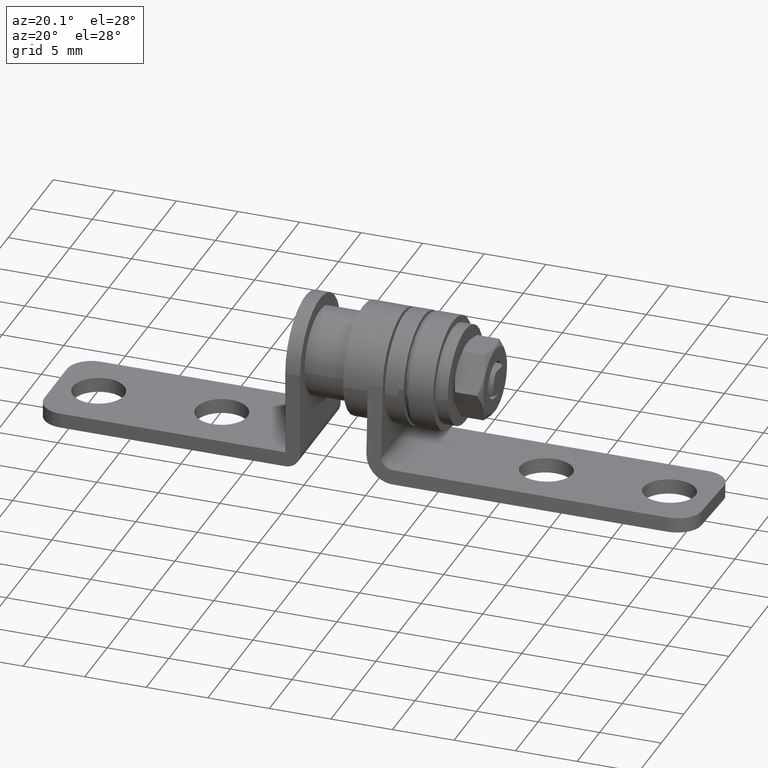
[diagram: clean part render]
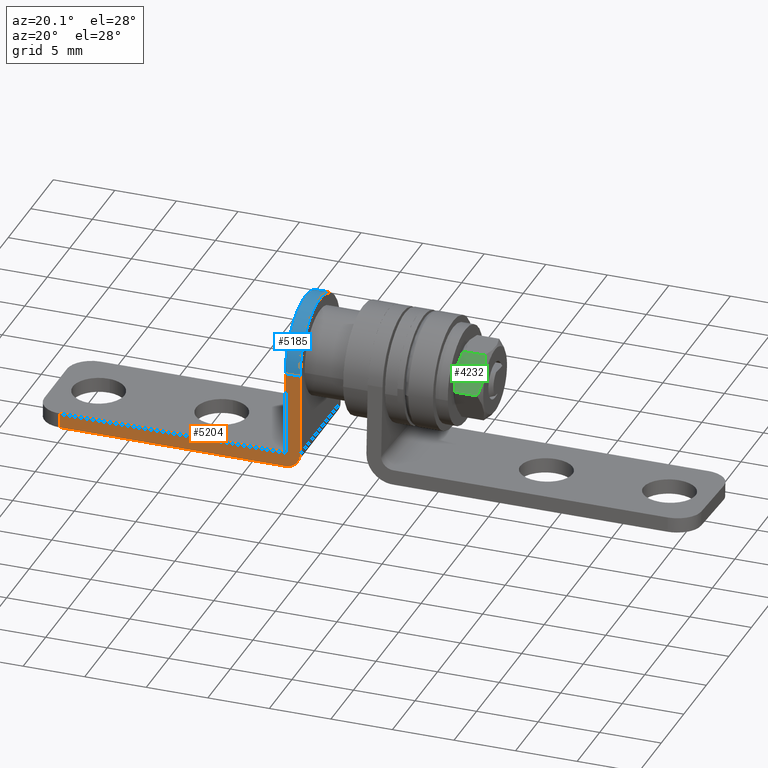
[diagram: same view with three faces highlighted in distinct colors, each labeled with its STEP entity id]
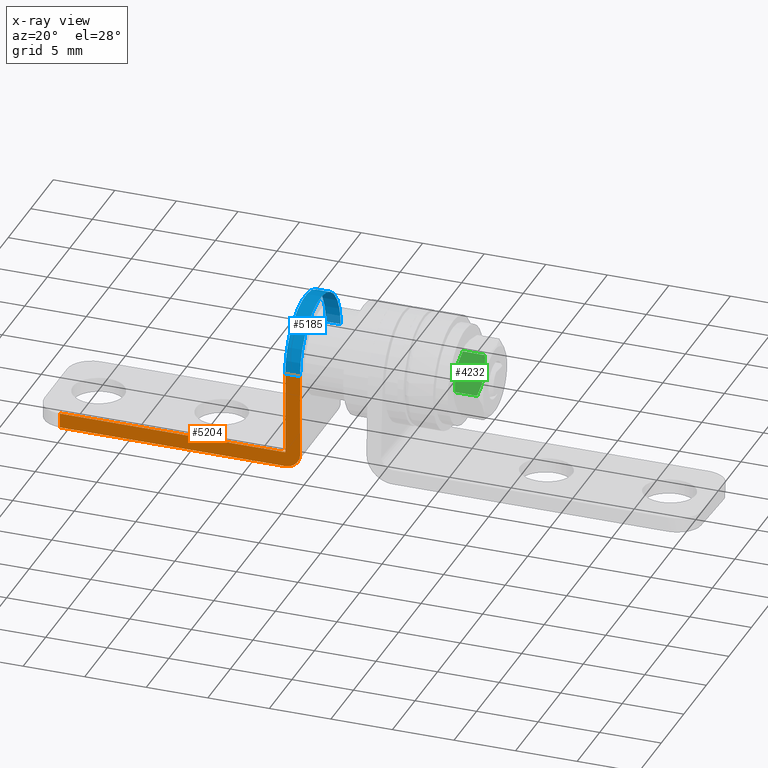
[diagram: x-ray of the same camera — body ghosted, the three highlighted faces saturated]
A machine part, auxiliary view with three faces highlighted in distinct colors.
The next image is the same camera in x-ray (body ghosted, the three faces saturated) — at least one of them is partly hidden behind the body in this view.
Their STEP definitions:

[orange] entity #5204 — the highlighted face is a freeform B-spline surface patch.
#4654=CARTESIAN_POINT('',(-6.699999999999861,-4.500000000000150,-6.799999999999099));
#4655=VERTEX_POINT('',#4654);
#4661=CARTESIAN_POINT('',(-6.699999999999821,-4.500000000000339,7.966345E-013));
#4662=VERTEX_POINT('',#4661);
#4663=CARTESIAN_POINT('',(-6.699999999999861,-4.500000000000150,-6.799999999999099));
#4664=CARTESIAN_POINT('',(-6.699999999999821,-4.500000000000339,7.966345E-013));
#4665=QUASI_UNIFORM_CURVE('',1,(#4663,#4664),.UNSPECIFIED.,.F.,.U.);
#4666=EDGE_CURVE('',#4655,#4662,#4665,.T.);
#4903=CARTESIAN_POINT('',(-5.499999999999840,-4.500000000000150,-6.799999999999099));
#4904=VERTEX_POINT('',#4903);
#4910=CARTESIAN_POINT('',(-6.699999999999821,-4.500000000000110,-7.999999999999100));
#4911=VERTEX_POINT('',#4910);
#4912=CARTESIAN_POINT('',(-6.699999999999821,-4.500000000000110,-7.999999999999100));
#4913=CARTESIAN_POINT('',(-5.499999999999820,-4.500000000000150,-7.999999999999100));
#4914=CARTESIAN_POINT('',(-5.499999999999821,-4.500000000000150,-6.799999999999099));
#4922=(BOUNDED_CURVE()B_SPLINE_CURVE(2,(#4912,#4913,#4914),.UNSPECIFIED.,.F.,.U.)CURVE()GEOMETRIC_REPRESENTATION_ITEM()QUASI_UNIFORM_CURVE()RATIONAL_B_SPLINE_CURVE((1.0,0.707106781186547,1.0))REPRESENTATION_ITEM(''));
#4923=EDGE_CURVE('',#4911,#4904,#4922,.T.);
#5000=CARTESIAN_POINT('',(-25.0,-4.500000000000110,-7.999999999999100));
#5001=VERTEX_POINT('',#5000);
#5015=CARTESIAN_POINT('',(-25.0,-4.500000000000150,-6.799999999999099));
#5016=VERTEX_POINT('',#5015);
#5017=CARTESIAN_POINT('',(-25.0,-4.500000000000150,-6.799999999999099));
#5018=CARTESIAN_POINT('',(-25.0,-4.500000000000110,-7.999999999999100));
#5019=QUASI_UNIFORM_CURVE('',1,(#5017,#5018),.UNSPECIFIED.,.F.,.U.);
#5020=EDGE_CURVE('',#5016,#5001,#5019,.T.);
#5046=CARTESIAN_POINT('',(-25.0,-4.500000000000150,-6.799999999999099));
#5047=CARTESIAN_POINT('',(-6.699999999999861,-4.500000000000150,-6.799999999999099));
#5048=QUASI_UNIFORM_CURVE('',1,(#5046,#5047),.UNSPECIFIED.,.F.,.U.);
#5049=EDGE_CURVE('',#5016,#4655,#5048,.T.);
#5084=CARTESIAN_POINT('',(-25.0,-4.500000000000110,-7.999999999999100));
#5085=CARTESIAN_POINT('',(-6.699999999999821,-4.500000000000110,-7.999999999999100));
#5086=QUASI_UNIFORM_CURVE('',1,(#5084,#5085),.UNSPECIFIED.,.F.,.U.);
#5087=EDGE_CURVE('',#5001,#4911,#5086,.T.);
#5151=CARTESIAN_POINT('',(-5.499999999999840,-4.500000000000339,7.966345E-013));
#5152=VERTEX_POINT('',#5151);
#5153=CARTESIAN_POINT('',(-6.699999999999821,-4.500000000000339,7.966345E-013));
#5154=CARTESIAN_POINT('',(-5.499999999999840,-4.500000000000339,7.966345E-013));
#5155=QUASI_UNIFORM_CURVE('',1,(#5153,#5154),.UNSPECIFIED.,.F.,.U.);
#5156=EDGE_CURVE('',#4662,#5152,#5155,.T.);
#5186=CARTESIAN_POINT('',(-25.974024962205231,-4.500000000000110,-8.399599984493545));
#5187=CARTESIAN_POINT('',(-25.974024962205231,-4.500000000000110,0.399600199071960));
#5188=CARTESIAN_POINT('',(-4.525974514763859,-4.500000000000110,-8.399599984493545));
#5189=CARTESIAN_POINT('',(-4.525974514763859,-4.500000000000110,0.399600199071960));
#5190=B_SPLINE_SURFACE_WITH_KNOTS('',1,1,((#5186,#5188),(#5187,#5189)),.UNSPECIFIED.,.F.,.F.,.U.,(2,2),(2,2),(0.0,8.799200183565505),(0.0,21.448050447441371),.UNSPECIFIED.);
#5191=ORIENTED_EDGE('',*,*,#5087,.T.);
#5192=ORIENTED_EDGE('',*,*,#4923,.T.);
#5193=CARTESIAN_POINT('',(-5.499999999999840,-4.500000000000150,-6.799999999999099));
#5194=CARTESIAN_POINT('',(-5.499999999999840,-4.500000000000339,7.966345E-013));
#5195=QUASI_UNIFORM_CURVE('',1,(#5193,#5194),.UNSPECIFIED.,.F.,.U.);
#5196=EDGE_CURVE('',#4904,#5152,#5195,.T.);
#5197=ORIENTED_EDGE('',*,*,#5196,.T.);
#5198=ORIENTED_EDGE('',*,*,#5156,.F.);
#5199=ORIENTED_EDGE('',*,*,#4666,.F.);
#5200=ORIENTED_EDGE('',*,*,#5049,.F.);
#5201=ORIENTED_EDGE('',*,*,#5020,.T.);
#5202=EDGE_LOOP('',(#5191,#5192,#5197,#5198,#5199,#5200,#5201));
#5203=FACE_OUTER_BOUND('',#5202,.T.);
#5204=ADVANCED_FACE('',(#5203),#5190,.F.);

[blue] entity #5185 — the highlighted face is a freeform B-spline surface patch.
#4661=CARTESIAN_POINT('',(-6.699999999999821,-4.500000000000339,7.966345E-013));
#4662=VERTEX_POINT('',#4661);
#4668=CARTESIAN_POINT('',(-6.699999999999821,4.500000000000110,1.075247E-012));
#4669=VERTEX_POINT('',#4668);
#4670=CARTESIAN_POINT('',(-6.699999999999821,-4.500000000000339,7.966345E-013));
#4671=CARTESIAN_POINT('',(-6.699999999999830,-4.500047832245083,0.312930381929105));
#4672=CARTESIAN_POINT('',(-6.699999999999809,-4.434457262288673,0.938776859110739));
#4673=CARTESIAN_POINT('',(-6.699999999999831,-4.172386014225875,1.748804129865697));
#4674=CARTESIAN_POINT('',(-6.699999999999773,-3.763422303934017,2.513898888851450));
#4675=CARTESIAN_POINT('',(-6.699999999999945,-3.265826402022967,3.135669746802380));
#4676=CARTESIAN_POINT('',(-6.699999999999726,-2.689455276664313,3.626620578947549));
#4677=CARTESIAN_POINT('',(-6.699999999999953,-2.081807802544225,4.011439496232184));
#4678=CARTESIAN_POINT('',(-6.699999999999799,-1.316811237609119,4.339433957577369));
#4679=CARTESIAN_POINT('',(-6.699999999999691,-0.443255645021400,4.507625487068368));
#4680=CARTESIAN_POINT('',(-6.699999999999990,0.313867856305708,4.502905459394598));
#4681=CARTESIAN_POINT('',(-6.699999999999714,0.970969847780242,4.409559325590482));
#4682=CARTESIAN_POINT('',(-6.699999999999927,1.574294997939953,4.234606824575129));
#4683=CARTESIAN_POINT('',(-6.699999999999674,2.159705652300759,3.962084328932521));
#4684=CARTESIAN_POINT('',(-6.700000000000053,2.705047864883740,3.616764875993072));
#4685=CARTESIAN_POINT('',(-6.699999999999762,3.166711561180019,3.218539122114129));
#4686=CARTESIAN_POINT('',(-6.699999999999853,3.627547715170934,2.690868617968110));
#4687=CARTESIAN_POINT('',(-6.699999999999841,4.056996490455380,2.021959989861554));
#4688=CARTESIAN_POINT('',(-6.699999999999569,4.411419079078895,1.086023850390726));
#4689=CARTESIAN_POINT('',(-6.700000000000338,4.500086232940491,0.368160612764081));
#4690=CARTESIAN_POINT('',(-6.699999999999821,4.500000000000110,1.075247E-012));
#4691=B_SPLINE_CURVE_WITH_KNOTS('',3,(#4670,#4671,#4672,#4673,#4674,#4675,#4676,#4677,#4678,#4679,#4680,#4681,#4682,#4683,#4684,#4685,#4686,#4687,#4688,#4689,#4690),.UNSPECIFIED.,.F.,.U.,(4,1,1,1,1,1,1,1,1,1,1,1,1,1,1,1,1,1,4),(0.000000057662223,0.938787494681190,1.877599288929286,2.540291116036402,3.534317656848449,4.252245095246716,4.804431963722935,5.688021064058601,6.737286346414174,7.455198001260669,7.952210544286672,8.725357809875623,9.332823483653414,9.885012280559479,10.658162528249530,11.155172280645830,11.983535624809839,13.032788162184200,14.137255645931440),.UNSPECIFIED.);
#4692=EDGE_CURVE('',#4662,#4669,#4691,.T.);
#5112=CARTESIAN_POINT('',(-5.499999999999840,4.500000000000110,1.075247E-012));
#5113=VERTEX_POINT('',#5112);
#5124=CARTESIAN_POINT('',(-6.699999999999821,4.500000000000110,1.075247E-012));
#5125=CARTESIAN_POINT('',(-5.499999999999840,4.500000000000110,1.075247E-012));
#5126=QUASI_UNIFORM_CURVE('',1,(#5124,#5125),.UNSPECIFIED.,.F.,.U.);
#5127=EDGE_CURVE('',#4669,#5113,#5126,.T.);
#5132=CARTESIAN_POINT('',(-6.729999999999821,-4.499828653788654,-0.039269409741882));
#5133=CARTESIAN_POINT('',(-5.469249999999840,-4.499828653788654,-0.039269409741882));
#5134=CARTESIAN_POINT('',(-6.729999999999822,-4.540493317982066,4.620439568119794));
#5135=CARTESIAN_POINT('',(-5.469249999999840,-4.540493317982066,4.620439568119794));
#5136=CARTESIAN_POINT('',(-6.729999999999821,0.117796267385346,4.498457962391006));
#5137=CARTESIAN_POINT('',(-5.469249999999840,0.117796267385346,4.498457962391006));
#5138=CARTESIAN_POINT('',(-6.729999999999822,4.776085852752757,4.376476356662218));
#5139=CARTESIAN_POINT('',(-5.469249999999840,4.776085852752757,4.376476356662218));
#5140=CARTESIAN_POINT('',(-6.729999999999821,4.491606592898525,-0.274718427905662));
#5141=CARTESIAN_POINT('',(-5.469249999999840,4.491606592898525,-0.274718427905662));
#5149=(BOUNDED_SURFACE()B_SPLINE_SURFACE(1,2,((#5132,#5134,#5136,#5138,#5140),(#5133,#5135,#5137,#5139,#5141)),.UNSPECIFIED.,.F.,.F.,.U.)B_SPLINE_SURFACE_WITH_KNOTS((2,2),(3,2,3),(0.0,1.0),(0.0,7.640546691772880,15.281093383545761),.UNSPECIFIED.)GEOMETRIC_REPRESENTATION_ITEM()RATIONAL_B_SPLINE_SURFACE(((1.0,0.694658370458997,1.0,0.694658370458997,1.0),(1.0,0.694658370458997,1.0,0.694658370458997,1.0)))REPRESENTATION_ITEM('')SURFACE());
#5150=ORIENTED_EDGE('',*,*,#4692,.F.);
#5151=CARTESIAN_POINT('',(-5.499999999999840,-4.500000000000339,7.966345E-013));
#5152=VERTEX_POINT('',#5151);
#5153=CARTESIAN_POINT('',(-6.699999999999821,-4.500000000000339,7.966345E-013));
#5154=CARTESIAN_POINT('',(-5.499999999999840,-4.500000000000339,7.966345E-013));
#5155=QUASI_UNIFORM_CURVE('',1,(#5153,#5154),.UNSPECIFIED.,.F.,.U.);
#5156=EDGE_CURVE('',#4662,#5152,#5155,.T.);
#5157=ORIENTED_EDGE('',*,*,#5156,.T.);
#5158=CARTESIAN_POINT('',(-5.499999999999840,-4.500000000000339,7.966345E-013));
#5159=CARTESIAN_POINT('',(-5.499999999999838,-4.500047828034774,0.312930417315108));
#5160=CARTESIAN_POINT('',(-5.499999999999840,-4.434457202787663,0.938776727072932));
#5161=CARTESIAN_POINT('',(-5.499999999999848,-4.172386168399567,1.748804328482675));
#5162=CARTESIAN_POINT('',(-5.499999999999805,-3.763422179921853,2.513898761992441));
#5163=CARTESIAN_POINT('',(-5.499999999999938,-3.265826440697027,3.135669791581036));
#5164=CARTESIAN_POINT('',(-5.499999999999766,-2.689455307522313,3.626620587450480));
#5165=CARTESIAN_POINT('',(-5.499999999999975,-2.081808940774129,4.011447281931111));
#5166=CARTESIAN_POINT('',(-5.499999999999763,-1.469807950237076,4.273788515551078));
#5167=CARTESIAN_POINT('',(-5.499999999999790,-0.700527235688655,4.466489724649106));
#5168=CARTESIAN_POINT('',(-5.500000000000026,-0.017912630451216,4.521069033043697));
#5169=CARTESIAN_POINT('',(-5.499999999999695,0.717076957480224,4.457735925964769));
#5170=CARTESIAN_POINT('',(-5.499999999999891,1.292835052395580,4.324733505390593));
#5171=CARTESIAN_POINT('',(-5.499999999999855,1.896260955874288,4.096200558226009));
#5172=CARTESIAN_POINT('',(-5.499999999999796,2.545587440776548,3.744061566114262));
#5173=CARTESIAN_POINT('',(-5.499999999999964,3.118221908323895,3.274096815255023));
#5174=CARTESIAN_POINT('',(-5.499999999999864,3.627548356405215,2.690869050042914));
#5175=CARTESIAN_POINT('',(-5.499999999999773,4.056994850702718,2.021958579253274));
#5176=CARTESIAN_POINT('',(-5.500000000000060,4.411420190924399,1.086024034156849));
#5177=CARTESIAN_POINT('',(-5.499999999999473,4.500086097609638,0.368161146016535));
#5178=CARTESIAN_POINT('',(-5.499999999999840,4.500000000000110,1.075247E-012));
#5179=B_SPLINE_CURVE_WITH_KNOTS('',3,(#5158,#5159,#5160,#5161,#5162,#5163,#5164,#5165,#5166,#5167,#5168,#5169,#5170,#5171,#5172,#5173,#5174,#5175,#5176,#5177,#5178),.UNSPECIFIED.,.F.,.U.,(4,1,1,1,1,1,1,1,1,1,1,1,1,1,1,1,1,1,4),(0.000000057662223,0.938787494681190,1.877599288929286,2.540291116036402,3.534317656848449,4.252245095246716,4.804431963722935,5.688021064058601,6.240265636046014,7.179076398946213,7.731320558586447,8.449220235906182,8.946237819513764,9.664136078911589,10.658162528249530,11.155172280645830,11.983535624809839,13.032788162184200,14.137255645931440),.UNSPECIFIED.);
#5180=EDGE_CURVE('',#5152,#5113,#5179,.T.);
#5181=ORIENTED_EDGE('',*,*,#5180,.T.);
#5182=ORIENTED_EDGE('',*,*,#5127,.F.);
#5183=EDGE_LOOP('',(#5150,#5157,#5181,#5182));
#5184=FACE_OUTER_BOUND('',#5183,.T.);
#5185=ADVANCED_FACE('',(#5184),#5149,.T.);

[green] entity #4232 — the highlighted face is a freeform B-spline surface patch.
#3886=CARTESIAN_POINT('',(6.603355119980720,-3.171074668920470,0.166188981366270));
#3887=VERTEX_POINT('',#3886);
#3897=CARTESIAN_POINT('',(6.603355119980720,-1.441613454787634,2.829325711255580));
#3898=VERTEX_POINT('',#3897);
#3899=CARTESIAN_POINT('',(6.603355119980720,-1.441613454787634,2.829325711255580));
#3900=CARTESIAN_POINT('',(6.528518122519493,-1.582807292413152,2.611906267591979));
#3901=CARTESIAN_POINT('',(6.466838734999128,-1.725030737102701,2.392901368083993));
#3902=CARTESIAN_POINT('',(6.381392646809013,-2.012444363630363,1.950323194476154));
#3903=CARTESIAN_POINT('',(6.357907799787670,-2.157656601032421,1.726715957786123));
#3904=CARTESIAN_POINT('',(6.357693039376234,-2.341452257727781,1.443695465542841));
#3905=CARTESIAN_POINT('',(6.359095559162431,-2.378397627348468,1.386804585289408));
#3906=CARTESIAN_POINT('',(6.364746374069998,-2.451952670925675,1.273539750774290));
#3907=CARTESIAN_POINT('',(6.368988150560945,-2.488602413173734,1.217104096754307));
#3908=CARTESIAN_POINT('',(6.385778692842820,-2.598184891555490,1.048361877648179));
#3909=CARTESIAN_POINT('',(6.402402175501041,-2.670750021906023,0.936621375828017));
#3910=CARTESIAN_POINT('',(6.466592988176699,-2.887153482977559,0.603389268079507));
#3911=CARTESIAN_POINT('',(6.528424883042154,-3.029704917773462,0.383879308098277));
#3912=CARTESIAN_POINT('',(6.603355119980720,-3.171074668920470,0.166188981366270));
#3913=B_SPLINE_CURVE_WITH_KNOTS('',3,(#3899,#3900,#3901,#3902,#3903,#3904,#3905,#3906,#3907,#3908,#3909,#3910,#3911,#3912),.UNSPECIFIED.,.F.,.U.,(4,2,2,2,2,2,4),(0.0,0.250000000000000,0.500000000000000,0.562500000000000,0.625000000000000,0.750000000000000,1.0),.UNSPECIFIED.);
#3914=EDGE_CURVE('',#3898,#3887,#3913,.T.);
#3975=CARTESIAN_POINT('',(8.640742200765510,-2.240953435973171,1.598456549598336));
#3976=VERTEX_POINT('',#3975);
#3982=CARTESIAN_POINT('',(8.396644880019130,-3.171074668920365,0.166188981366068));
#3983=VERTEX_POINT('',#3982);
#3984=CARTESIAN_POINT('',(8.640742200765510,-2.240953435973171,1.598456549598336));
#3985=CARTESIAN_POINT('',(8.641731683815456,-2.262163306971898,1.565796068312325));
#3986=CARTESIAN_POINT('',(8.642244973492087,-2.283410440711552,1.533078206930437));
#3987=CARTESIAN_POINT('',(8.642312423476763,-2.341454824694877,1.443697298075534));
#3988=CARTESIAN_POINT('',(8.640909665193323,-2.378400082246905,1.386806337817372));
#3989=CARTESIAN_POINT('',(8.635258374026099,-2.451954902032083,1.273541343539303));
#3990=CARTESIAN_POINT('',(8.631016359518105,-2.488604532437124,1.217105609675680));
#3991=CARTESIAN_POINT('',(8.614225103508794,-2.598186675441939,1.048363151147218));
#3992=CARTESIAN_POINT('',(8.597601145464649,-2.670751582411015,0.936622489857208));
#3993=CARTESIAN_POINT('',(8.533408907771522,-2.887154373874012,0.603389904081683));
#3994=CARTESIAN_POINT('',(8.471576064410380,-3.029705362976582,0.383879625924322));
#3995=CARTESIAN_POINT('',(8.396644880019130,-3.171074668920365,0.166188981366068));
#3996=B_SPLINE_CURVE_WITH_KNOTS('',3,(#3984,#3985,#3986,#3987,#3988,#3989,#3990,#3991,#3992,#3993,#3994,#3995),.UNSPECIFIED.,.F.,.U.,(4,2,2,2,2,4),(0.463809284584120,0.500000000000000,0.562500000000000,0.625000000000000,0.750000000000000,1.0),.UNSPECIFIED.);
#3997=EDGE_CURVE('',#3976,#3983,#3996,.T.);
#4112=CARTESIAN_POINT('',(8.396644880019130,-1.441613454787758,2.829325711255390));
#4113=VERTEX_POINT('',#4112);
#4131=CARTESIAN_POINT('',(8.396644880019130,-1.441613454787758,2.829325711255390));
#4132=CARTESIAN_POINT('',(8.471482977922616,-1.582807809505543,2.611906636738953));
#4133=CARTESIAN_POINT('',(8.533163464678776,-1.725031770720438,2.392902105973413));
#4134=CARTESIAN_POINT('',(8.612426878865076,-1.991642944481183,1.982359056849131));
#4135=CARTESIAN_POINT('',(8.634894744855744,-2.115647901887890,1.791409160260750));
#4136=CARTESIAN_POINT('',(8.640742200765510,-2.240953435973171,1.598456549598336));
#4137=B_SPLINE_CURVE_WITH_KNOTS('',3,(#4131,#4132,#4133,#4134,#4135,#4136),.UNSPECIFIED.,.F.,.U.,(4,2,4),(0.0,0.250000000000000,0.463809284584120),.UNSPECIFIED.);
#4138=EDGE_CURVE('',#4113,#3976,#4137,.T.);
#4204=CARTESIAN_POINT('',(8.396644880019130,-3.171074668920365,0.166188981366068));
#4205=CARTESIAN_POINT('',(6.603355119980720,-3.171074668920470,0.166188981366270));
#4206=QUASI_UNIFORM_CURVE('',1,(#4204,#4205),.UNSPECIFIED.,.F.,.U.);
#4207=EDGE_CURVE('',#3983,#3887,#4206,.T.);
#4216=CARTESIAN_POINT('',(6.243622597156453,-3.257461253200066,0.033165306860543));
#4217=CARTESIAN_POINT('',(6.243622597156453,-1.355226824106648,2.962349457183218));
#4218=CARTESIAN_POINT('',(8.756380895567807,-3.257461253200067,0.033165306860543));
#4219=CARTESIAN_POINT('',(8.756380895567807,-1.355226824106648,2.962349457183218));
#4220=B_SPLINE_SURFACE_WITH_KNOTS('',1,1,((#4216,#4218),(#4217,#4219)),.UNSPECIFIED.,.F.,.F.,.U.,(2,2),(2,2),(0.0,3.492651658801653),(0.0,2.512758298411353),.UNSPECIFIED.);
#4221=CARTESIAN_POINT('',(8.396644880019130,-1.441613454787758,2.829325711255390));
#4222=CARTESIAN_POINT('',(6.603355119980720,-1.441613454787634,2.829325711255580));
#4223=QUASI_UNIFORM_CURVE('',1,(#4221,#4222),.UNSPECIFIED.,.F.,.U.);
#4224=EDGE_CURVE('',#4113,#3898,#4223,.T.);
#4225=ORIENTED_EDGE('',*,*,#4224,.T.);
#4226=ORIENTED_EDGE('',*,*,#3914,.T.);
#4227=ORIENTED_EDGE('',*,*,#4207,.F.);
#4228=ORIENTED_EDGE('',*,*,#3997,.F.);
#4229=ORIENTED_EDGE('',*,*,#4138,.F.);
#4230=EDGE_LOOP('',(#4225,#4226,#4227,#4228,#4229));
#4231=FACE_OUTER_BOUND('',#4230,.T.);
#4232=ADVANCED_FACE('',(#4231),#4220,.F.);